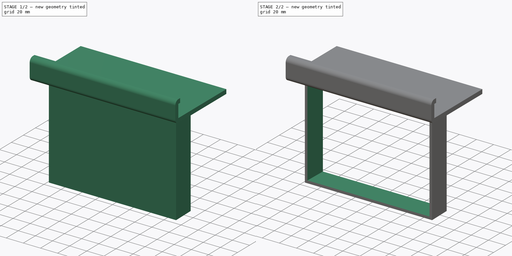
[diagram: build sequence overview — one tinted view per stage of 2, left to right]
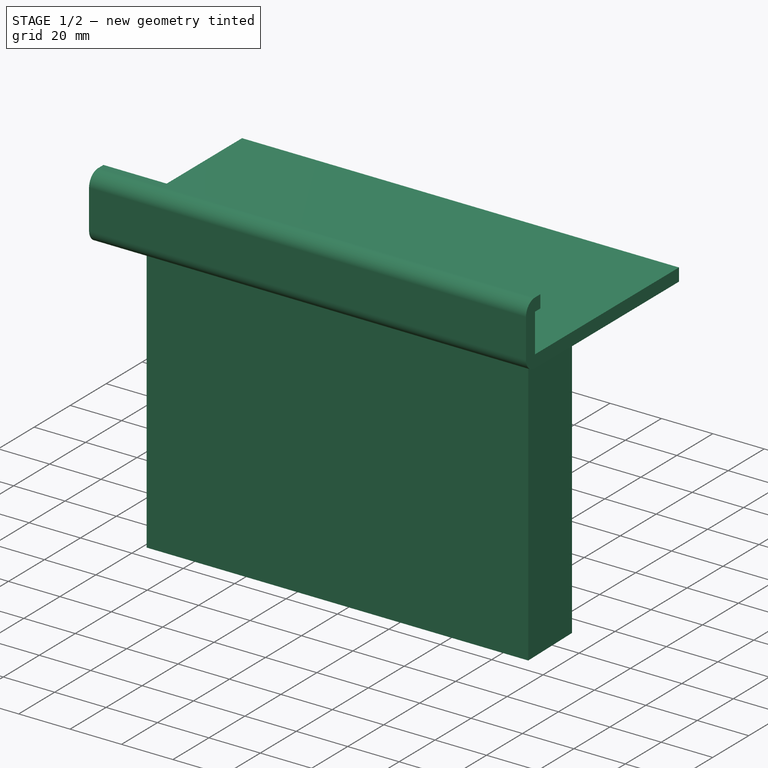
[diagram: stage 1 of 2 — iso view after this stage's code; geometry added in this stage tinted green]
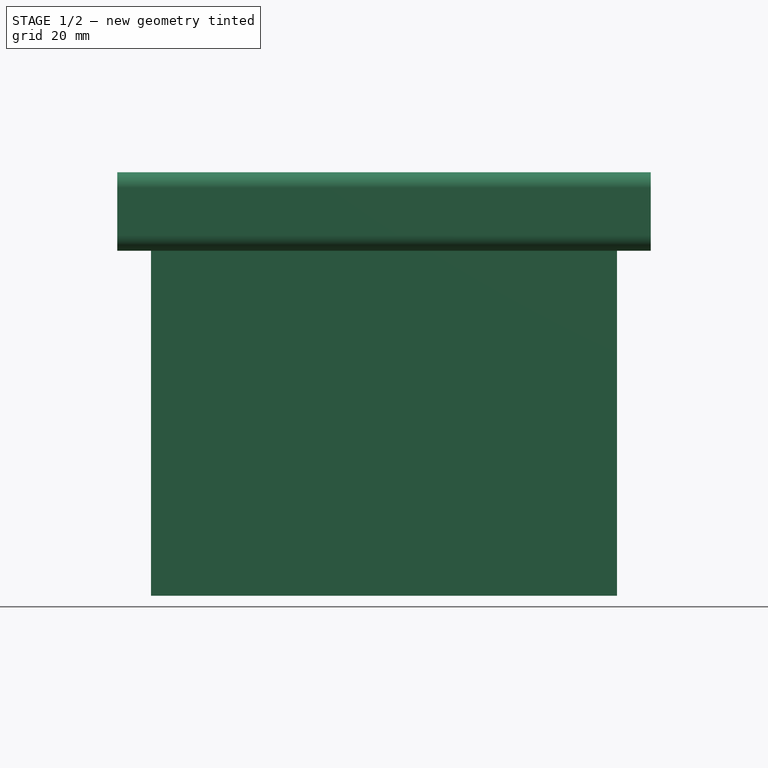
[diagram: stage 1 of 2 — front view after this stage's code; geometry added in this stage tinted green]
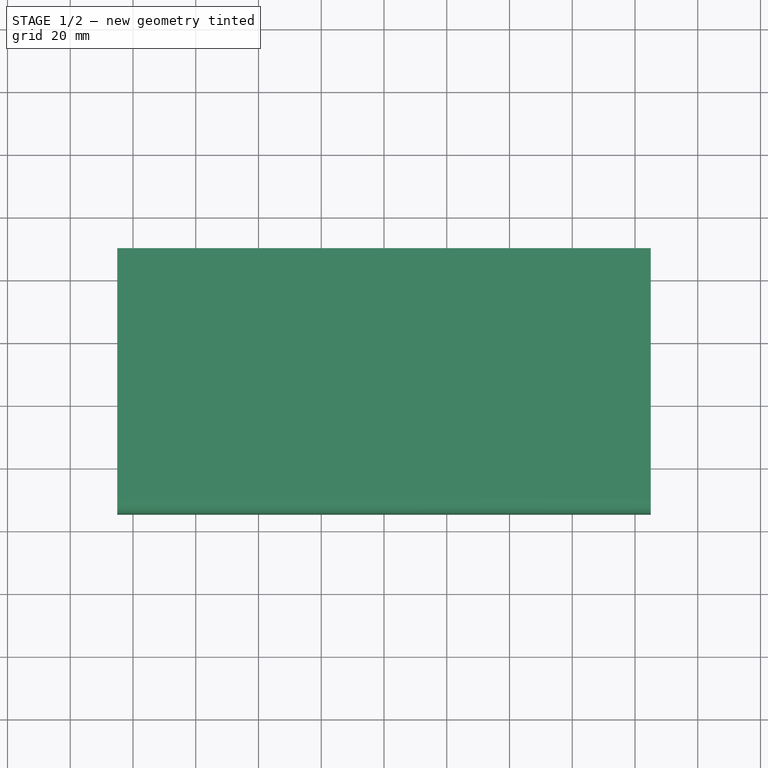
[diagram: stage 1 of 2 — top view after this stage's code; geometry added in this stage tinted green]
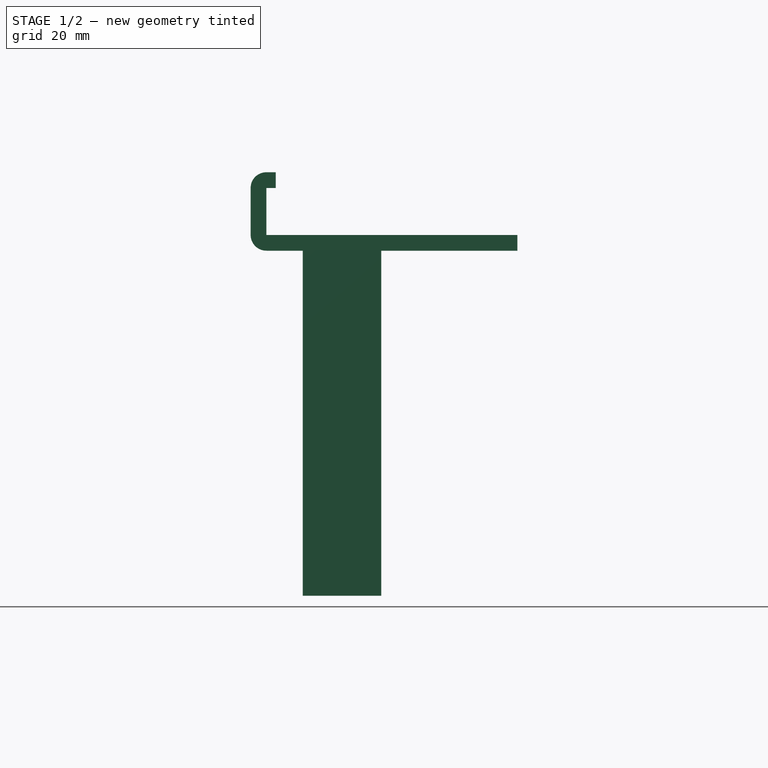
[diagram: stage 1 of 2 — right view after this stage's code; geometry added in this stage tinted green]
FCSTD DOCUMENT  (FreeCAD 0.18R16093 (Git))
Label: toyota_echo_2005-cell_support
License: All rights reserved
LicenseURL: http://en.wikipedia.org/wiki/All_rights_reserved
objects: Sketcher::SketchObject×2, PartDesign::Pad×2, PartDesign::Body×2, PartDesign::Thickness×1
note: 9 computed .brp shape members not serialized (recipe doc carries the construction recipe); baked Part::Feature solids carry a one-line shape summary decoded from their .brp

FEATURE [Sketcher::SketchObject] Sketch  label="Back"
  MapMode = 5
  Support = -> [XY_Plane]
  sketch-geometry (5):
    g0: LineSegment StartX=-73.75 StartY=25 StartZ=0 EndX=73.75 EndY=25 EndZ=0
    g1: LineSegment StartX=74.25 StartY=0 StartZ=0 EndX=73.75 EndY=25 EndZ=0
    g2: LineSegment StartX=-74.25 StartY=0 StartZ=0 EndX=74.25 EndY=0 EndZ=0
    g3: LineSegment StartX=-73.75 StartY=25 StartZ=0 EndX=-74.25 EndY=0 EndZ=0
    g4: LineSegment StartX=0 StartY=25 StartZ=0 EndX=0 EndY=0 EndZ=0
  constraints (13):
    c: Distance(g0) = 147.5
    c: Distance(g2) = 148.5
    c: Coincident(g1,g0)
    c: Coincident(g0,g3)
    c: Coincident(g3,g2)
    c: Coincident(g2,g1)
    c: Horizontal(g2)
    c: Symmetric(g0,g0,g4)
    c: PointOnObject(g4,g0)
    c: Equal(g1,g3)
    c: Coincident(g-1,g4)
    c: Symmetric(g2,g1,g4)
    c: Distance(g4) = 25
FEATURE [PartDesign::Pad] Pad  label="Depth"
  Length = 110
  Length2 = 100
  Profile = -> Sketch
  Type = 0
FEATURE [PartDesign::Body] Body  label="Enclosure"
  Group = -> [Sketch,Pad,Thickness]
  Origin = -> Origin
  Tip = -> Thickness
FEATURE [Sketcher::SketchObject] Sketch001
  MapMode = 5
  Placement = pos=(0,0,0) rot=(-0.57735,0.57735,0.57735;4.18879rad)
  Support = -> [YZ_Plane001]
  sketch-geometry (10):
    g0: LineSegment StartX=-68.3784 StartY=114.976 StartZ=0 EndX=11.6216 EndY=114.976 EndZ=0
    g1: LineSegment StartX=11.6216 StartY=109.976 StartZ=0 EndX=-68.3784 EndY=109.976 EndZ=0
    g2: LineSegment StartX=-68.3784 StartY=109.976 StartZ=0 EndX=-68.3784 EndY=114.976 EndZ=0
    g3: LineSegment StartX=16.6216 StartY=129.976 StartZ=0 EndX=16.6216 EndY=114.976 EndZ=0
    g4: LineSegment StartX=11.6216 StartY=114.976 StartZ=0 EndX=11.6216 EndY=129.976 EndZ=0
    g5: LineSegment StartX=8.62159 StartY=134.976 StartZ=0 EndX=11.6216 EndY=134.976 EndZ=0
    g6: LineSegment StartX=11.6216 StartY=129.976 StartZ=0 EndX=8.62159 EndY=129.976 EndZ=0
    g7: LineSegment StartX=8.62159 StartY=129.976 StartZ=0 EndX=8.62159 EndY=134.976 EndZ=0
    g8: ArcOfCircle CenterX=11.6216 CenterY=129.976 CenterZ=0 NormalX=0 NormalY=0 NormalZ=1 AngleXU=0 Radius=5 StartAngle=4.58598e-08 EndAngle=1.5708
    g9: ArcOfCircle CenterX=11.6216 CenterY=114.976 CenterZ=0 NormalX=0 NormalY=0 NormalZ=1 AngleXU=0 Radius=5 StartAngle=4.71239 EndAngle=6.28319
  constraints (30):
    c: Coincident(g1,g2)
    c: Coincident(g2,g0)
    c: Horizontal(g0)
    c: Horizontal(g1)
    c: Vertical(g2)
    c: Distance(g1) = 80
    c: Distance(g2) = 5
    c: Vertical(g3)
    c: Vertical(g4)
    c: Distance(g3) = 15
    c: Coincident(g6,g7)
    c: Coincident(g7,g5)
    c: Horizontal(g5)
    c: Horizontal(g6)
    c: Vertical(g7)
    c: Distance(g5) = 3
    c: Coincident(g9,g0)
    c: Coincident(g9,g1)
    c: Coincident(g4,g0)
    c: Coincident(g3,g9)
    c: Coincident(g8,g3)
    c: Coincident(g4,g6)
    c: Coincident(g8,g5)
    c: Radius(g8) = 5
    c: Radius(g9) = 5
    c: Distance(g7) = 5
    c: Equal(g3,g4)
    c: Angle(g9) = 1.5708
    c: Angle(g8) = 1.5708
    c: Block(g1)
FEATURE [PartDesign::Pad] Pad001
  Length = 170
  Length2 = 100
  Midplane = true
  Placement = pos=(0,0,0) rot=(0.57735,0.57735,0.57735;2.0944rad)
  Profile = -> Sketch001
  Type = 0
FEATURE [PartDesign::Body] Body001  label="Support"
  Group = -> [Sketch001,Pad001]
  Origin = -> Origin001
  Tip = -> Pad001
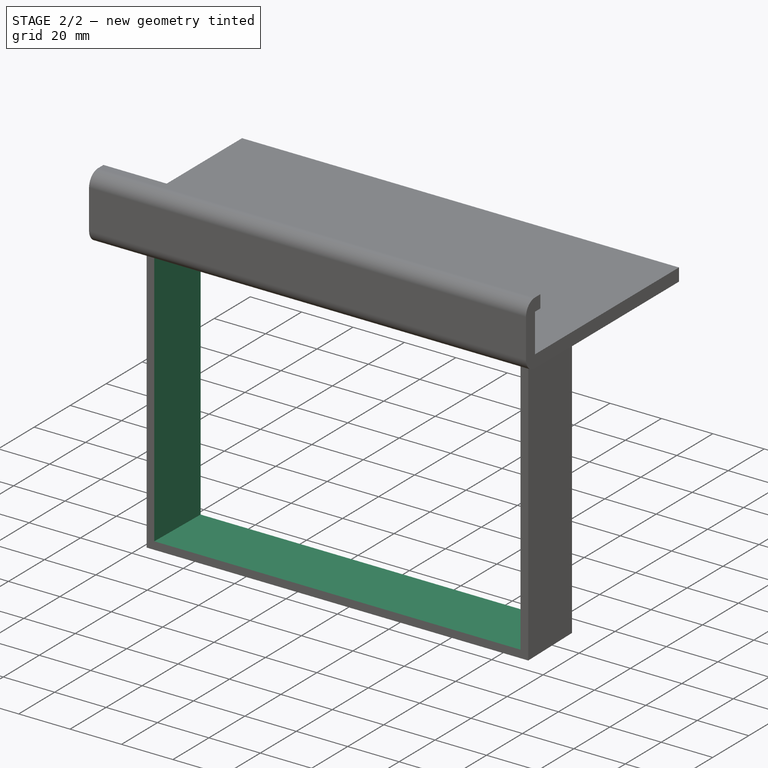
[diagram: stage 2 of 2 — iso view after this stage's code; geometry added in this stage tinted green]
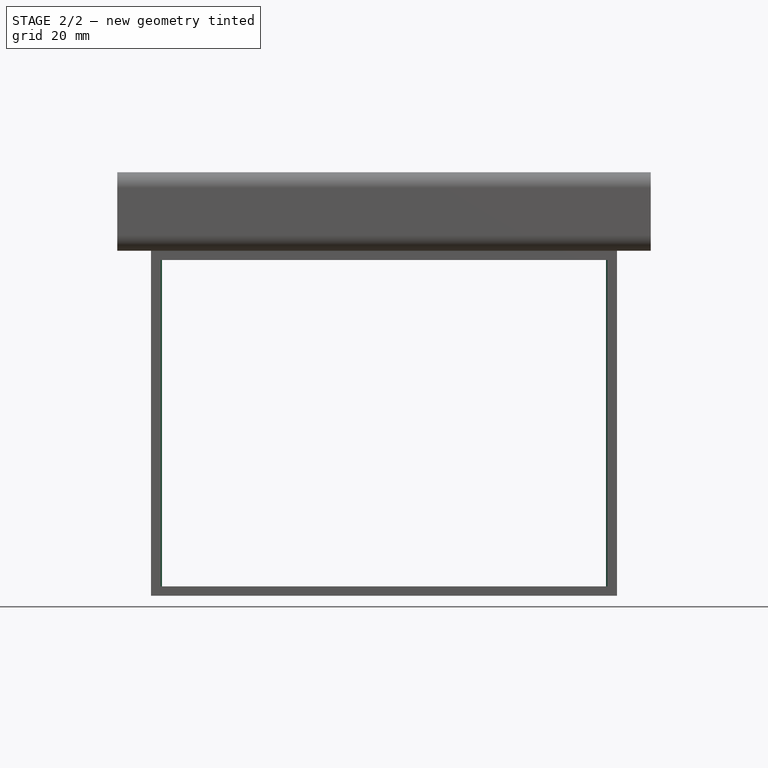
[diagram: stage 2 of 2 — front view after this stage's code; geometry added in this stage tinted green]
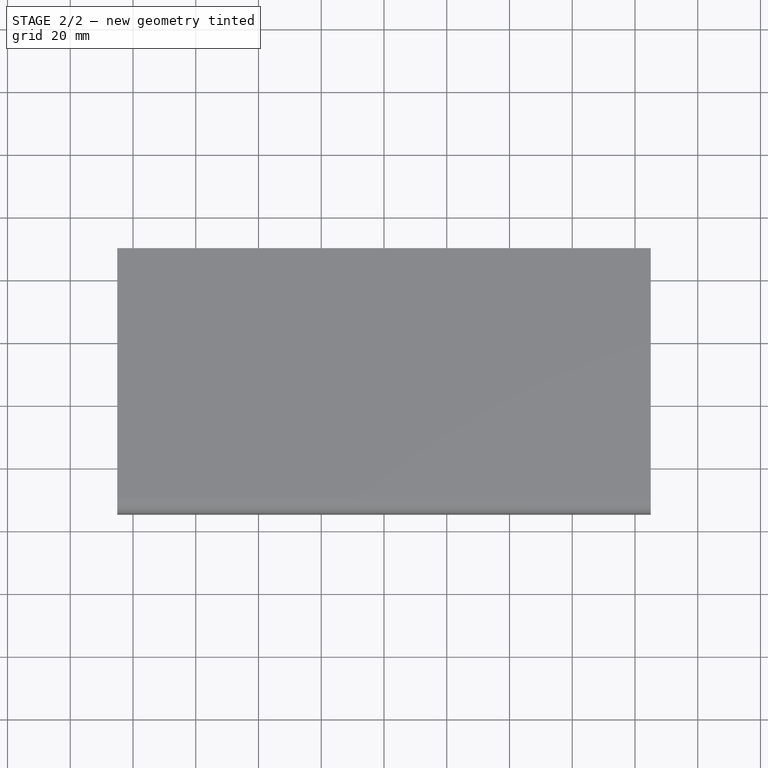
[diagram: stage 2 of 2 — top view after this stage's code; geometry added in this stage tinted green]
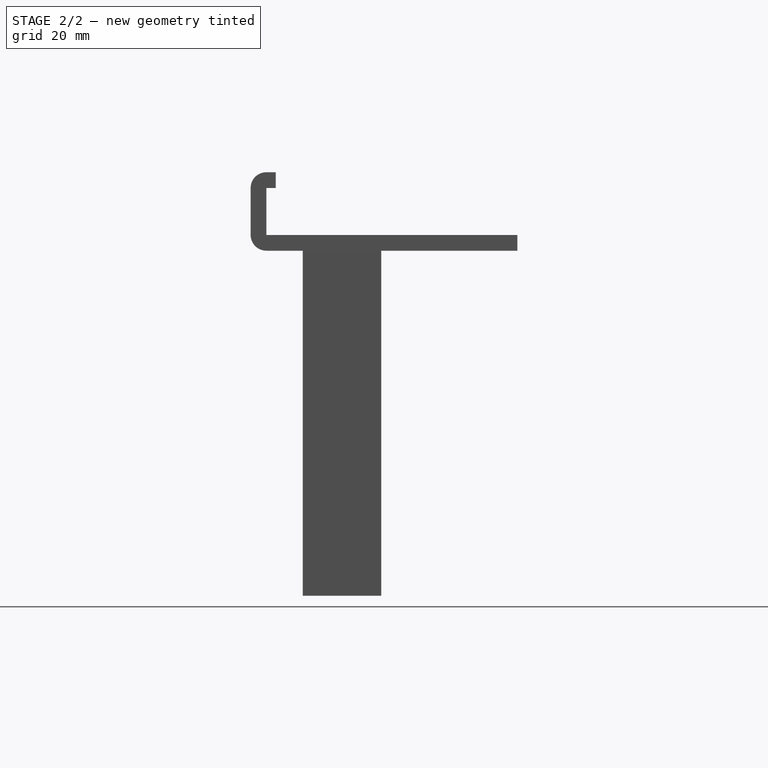
[diagram: stage 2 of 2 — right view after this stage's code; geometry added in this stage tinted green]
FEATURE [PartDesign::Thickness] Thickness
  Base = -> Pad [Face3,Face1]
  BaseFeature = -> Pad
  Join = 0
  Mode = 0
  Reversed = true
  Value = 3
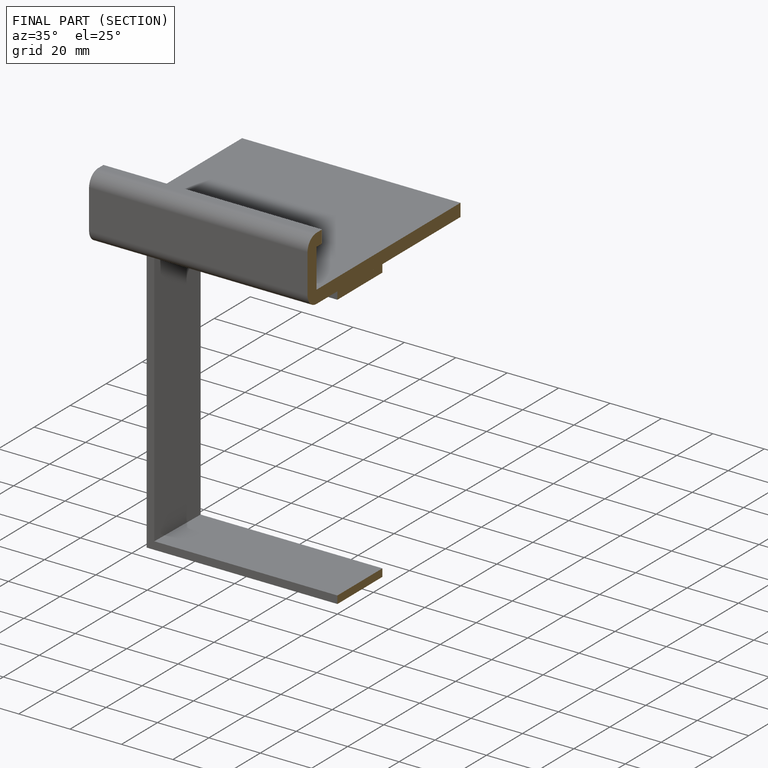
[diagram: finished part — half-section view (interior)]
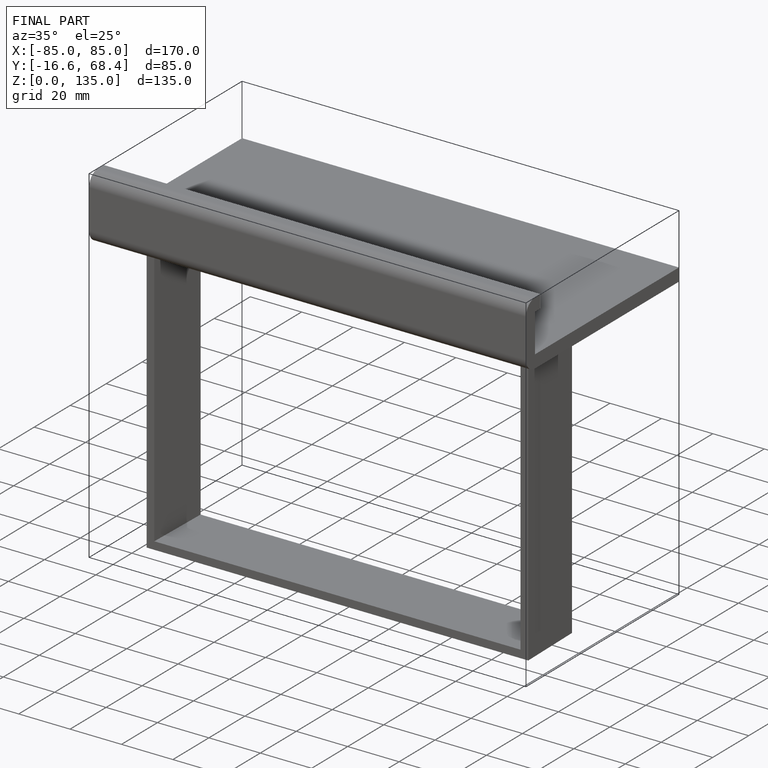
[diagram: finished part — iso view with bounding-box wireframe]
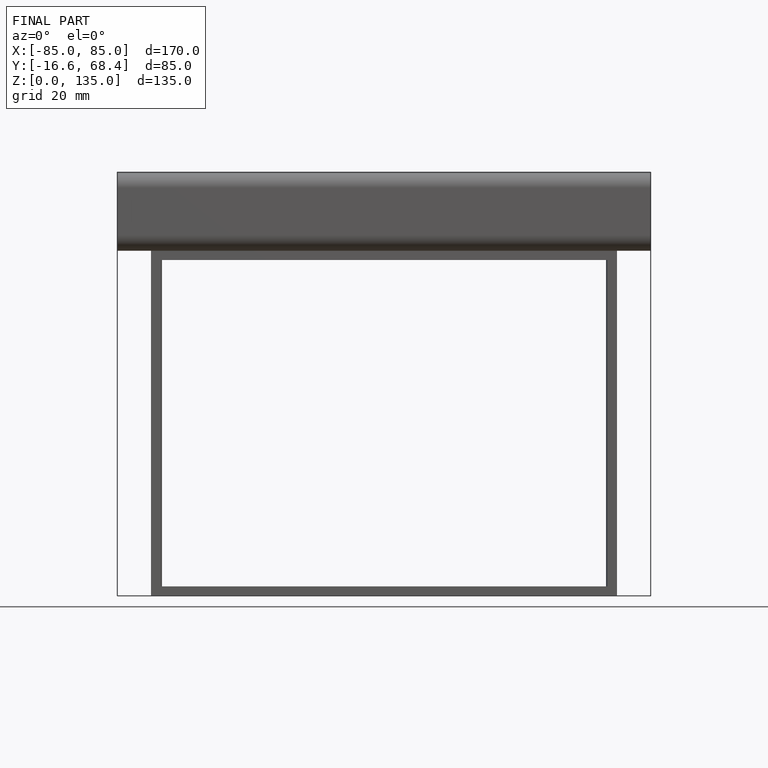
[diagram: finished part — front view with bounding-box wireframe]
